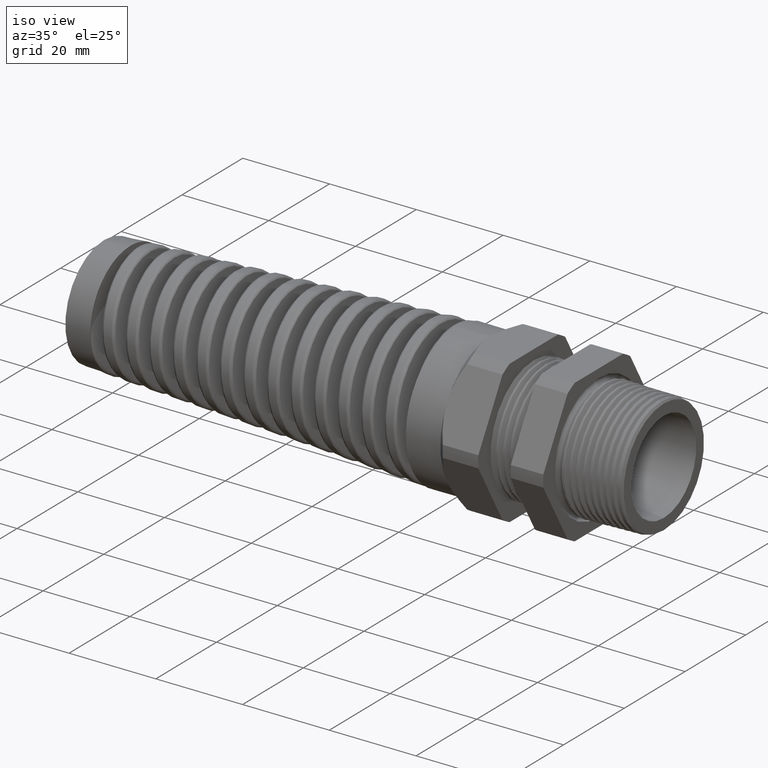
[diagram: clean part render]
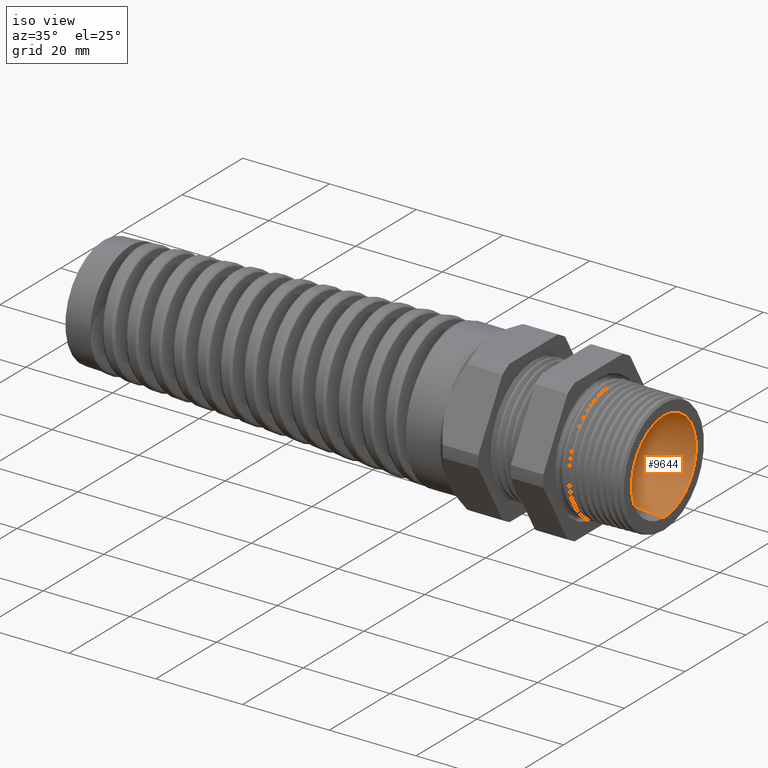
[diagram: same view with one face highlighted and labeled with its STEP entity id]
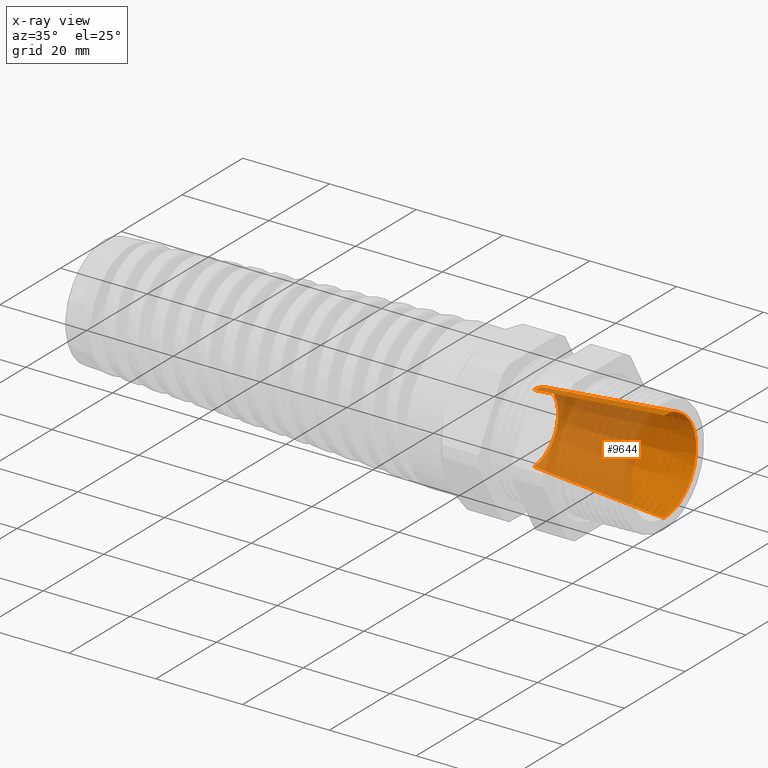
[diagram: x-ray of the same camera — body ghosted, the highlighted face saturated]
A machine part, iso view. The second image highlights one B-rep face of the part: STEP entity #9644.
The next image is the same camera in x-ray: the body ghosted, the highlighted face saturated — about 58% of this face is hidden behind the body in this view.
In plain terms, the highlighted conical surface has half-angle 5.085 deg.
Its self-contained STEP definition (entity closure, byte-faithful):
#5053 = VERTEX_POINT ( 'NONE', #11469 ) ;
#5055 = EDGE_CURVE ( 'NONE', #5072, #5053, #11468, .T. ) ;
#5069 = VERTEX_POINT ( 'NONE', #11500 ) ;
#5072 = VERTEX_POINT ( 'NONE', #11494 ) ;
#5130 = EDGE_CURVE ( 'NONE', #5069, #5131, #11586, .T. ) ;
#5131 = VERTEX_POINT ( 'NONE', #11577 ) ;
#9535 = EDGE_CURVE ( 'NONE', #5053, #5131, #14817, .T. ) ;
#9585 = ORIENTED_EDGE ( 'NONE', *, *, #10278, .F. ) ;
#9614 = ORIENTED_EDGE ( 'NONE', *, *, #5130, .F. ) ;
#9644 = ADVANCED_FACE ( 'NONE', ( #14881 ), #14880, .F. ) ;
#9675 = EDGE_LOOP ( 'NONE', ( #9614, #9585, #9946, #10208 ) ) ;
#9946 = ORIENTED_EDGE ( 'NONE', *, *, #5055, .T. ) ;
#10208 = ORIENTED_EDGE ( 'NONE', *, *, #9535, .T. ) ;
#10278 = EDGE_CURVE ( 'NONE', #5072, #5069, #14891, .T. ) ;
#11465 = DIRECTION ( 'NONE',  ( 0.9960648867844634800, 0.0000000000000000000, -0.08862697848315755100 ) ) ;
#11466 = VECTOR ( 'NONE', #11465, 39.37007874015748900 ) ;
#11467 = CARTESIAN_POINT ( 'NONE',  ( -0.9000787401574806800, 0.0000000000000000000, -0.3150000000000000000 ) ) ;
#11468 = LINE ( 'NONE', #11467, #11466 ) ;
#11469 = CARTESIAN_POINT ( 'NONE',  ( 0.2800000000000000300, 0.0000000000000000000, -0.4200000000000000400 ) ) ;
#11494 = CARTESIAN_POINT ( 'NONE',  ( -0.9000787401574806800, 0.0000000000000000000, -0.3150000000000000000 ) ) ;
#11500 = CARTESIAN_POINT ( 'NONE',  ( -0.9000787401574806800, 4.500576986866523500E-017, 0.3150000000000000000 ) ) ;
#11577 = CARTESIAN_POINT ( 'NONE',  ( 0.2800000000000000300, 5.143516556418884400E-017, 0.4200000000000000400 ) ) ;
#11578 = DIRECTION ( 'NONE',  ( 0.9960648867844634800, 1.085367455175002500E-017, 0.08862697848315755100 ) ) ;
#11579 = VECTOR ( 'NONE', #11578, 39.37007874015748900 ) ;
#11580 = CARTESIAN_POINT ( 'NONE',  ( -0.9000787401574806800, 3.857637417314162700E-017, 0.3150000000000000000 ) ) ;
#11586 = LINE ( 'NONE', #11580, #11579 ) ;
#14817 = CIRCLE ( 'NONE', #14889, 0.4200000000000000400 ) ;
#14818 = CARTESIAN_POINT ( 'NONE',  ( 0.2800000000000000300, 0.0000000000000000000, 0.0000000000000000000 ) ) ;
#14875 = DIRECTION ( 'NONE',  ( 0.0000000000000000000, 0.0000000000000000000, -1.000000000000000000 ) ) ;
#14876 = DIRECTION ( 'NONE',  ( 1.000000000000000000, 0.0000000000000000000, 0.0000000000000000000 ) ) ;
#14877 = CARTESIAN_POINT ( 'NONE',  ( -0.9000787401574806800, 0.0000000000000000000, 0.0000000000000000000 ) ) ;
#14878 = AXIS2_PLACEMENT_3D ( 'NONE', #14877, #14876, #14875 ) ;
#14880 = CONICAL_SURFACE ( 'NONE', #14878, 0.3150000000000000000, 0.08874341417693415400 ) ;
#14881 = FACE_OUTER_BOUND ( 'NONE', #9675, .T. ) ;
#14887 = DIRECTION ( 'NONE',  ( 0.0000000000000000000, 0.0000000000000000000, -1.000000000000000000 ) ) ;
#14888 = DIRECTION ( 'NONE',  ( 1.000000000000000000, 0.0000000000000000000, 0.0000000000000000000 ) ) ;
#14889 = AXIS2_PLACEMENT_3D ( 'NONE', #14818, #14888, #14887 ) ;
#14890 = AXIS2_PLACEMENT_3D ( 'NONE', #14895, #14955, #14954 ) ;
#14891 = CIRCLE ( 'NONE', #14890, 0.3150000000000000000 ) ;
#14895 = CARTESIAN_POINT ( 'NONE',  ( -0.9000787401574806800, 0.0000000000000000000, 0.0000000000000000000 ) ) ;
#14954 = DIRECTION ( 'NONE',  ( 0.0000000000000000000, 0.0000000000000000000, -1.000000000000000000 ) ) ;
#14955 = DIRECTION ( 'NONE',  ( 1.000000000000000000, 0.0000000000000000000, 0.0000000000000000000 ) ) ;